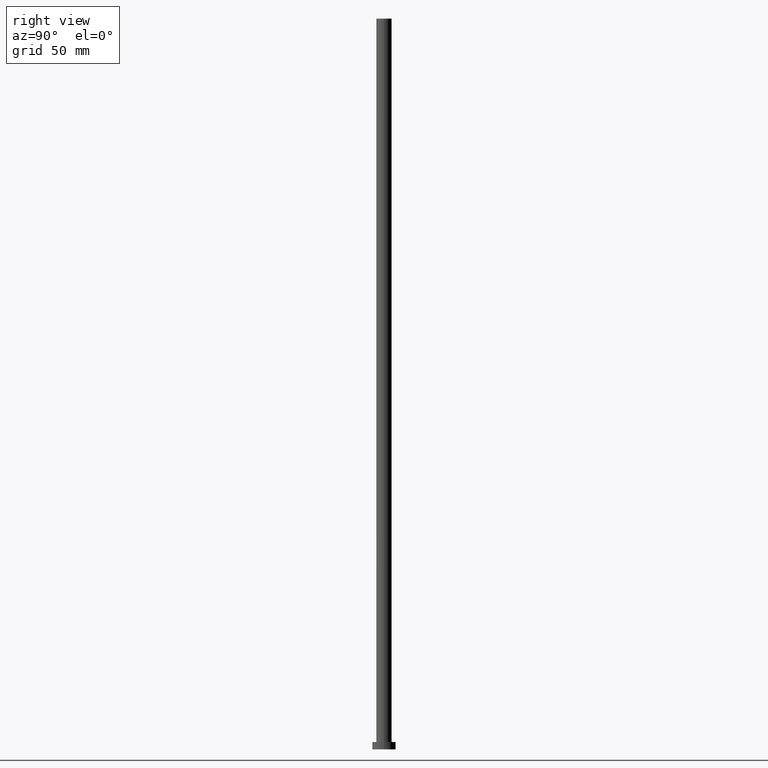
[diagram: clean part render]
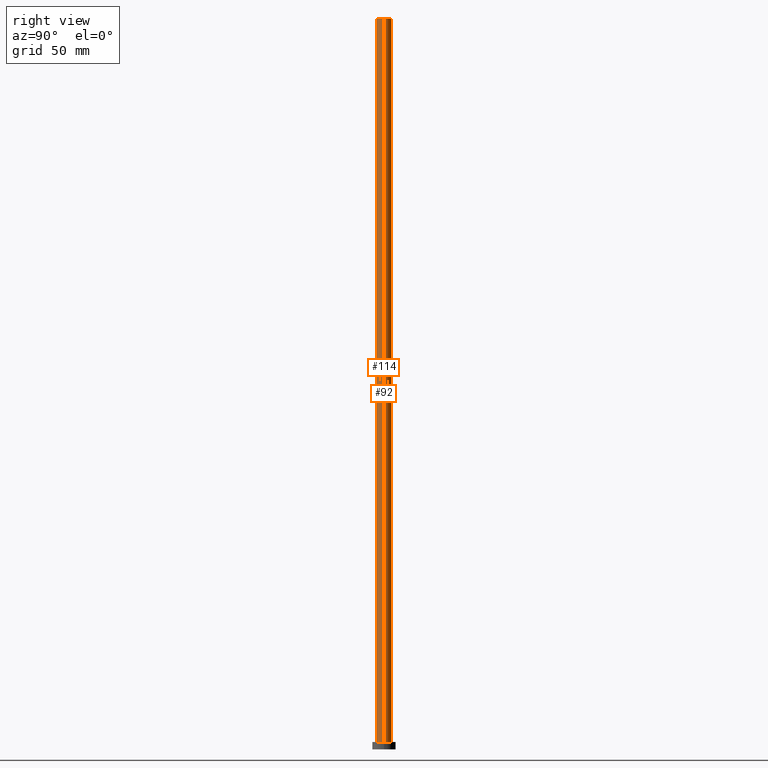
[diagram: same view with one multi-face feature highlighted, each face labeled with its STEP entity id]
A machine part, right view. The highlighted faces form ONE feature: a constant-radius fillet chain: 2 tangent blend faces with common blend radius 5.25 mm. The faces share edges in the B-rep.
Their STEP definitions:
[1] entity #92 (Cylinder):
#1 = ORIENTED_EDGE ( 'NONE', *, *, #166, .T. ) ;
#3 = VERTEX_POINT ( 'NONE', #38 ) ;
#12 = CARTESIAN_POINT ( 'NONE',  ( -5.250000000000000000, 0.000000000000000000, 500.0000000000000000 ) ) ;
#18 = EDGE_LOOP ( 'NONE', ( #95, #1, #43, #97 ) ) ;
#24 = DIRECTION ( 'NONE',  ( 0.000000000000000000, 0.000000000000000000, 1.000000000000000000 ) ) ;
#29 = CIRCLE ( 'NONE', #169, 5.250000000000000000 ) ;
#31 = CARTESIAN_POINT ( 'NONE',  ( -5.250000000000000000, 0.000000000000000000, 5.000000000000000000 ) ) ;
#38 = CARTESIAN_POINT ( 'NONE',  ( 5.250000000000000000, 6.429395695523604153E-16, 500.0000000000000000 ) ) ;
#40 = VERTEX_POINT ( 'NONE', #240 ) ;
#43 = ORIENTED_EDGE ( 'NONE', *, *, #110, .T. ) ;
#47 = AXIS2_PLACEMENT_3D ( 'NONE', #159, #141, #179 ) ;
#66 = LINE ( 'NONE', #68, #180 ) ;
#68 = CARTESIAN_POINT ( 'NONE',  ( 5.250000000000000000, 6.429395695523604153E-16, 500.0000000000000000 ) ) ;
#75 = EDGE_CURVE ( 'NONE', #3, #171, #150, .T. ) ;
#78 = FACE_OUTER_BOUND ( 'NONE', #18, .T. ) ;
#82 = DIRECTION ( 'NONE',  ( -0.000000000000000000, -0.000000000000000000, -1.000000000000000000 ) ) ;
#92 = ADVANCED_FACE ( 'NONE', ( #78 ), #199, .T. ) ;
#95 = ORIENTED_EDGE ( 'NONE', *, *, #75, .F. ) ;
#97 = ORIENTED_EDGE ( 'NONE', *, *, #161, .F. ) ;
#102 = LINE ( 'NONE', #209, #178 ) ;
#110 = EDGE_CURVE ( 'NONE', #40, #238, #29, .T. ) ;
#111 = CARTESIAN_POINT ( 'NONE',  ( 0.000000000000000000, 0.000000000000000000, 5.000000000000000000 ) ) ;
#141 = DIRECTION ( 'NONE',  ( -0.000000000000000000, -0.000000000000000000, -1.000000000000000000 ) ) ;
#150 = CIRCLE ( 'NONE', #252, 5.250000000000000000 ) ;
#156 = DIRECTION ( 'NONE',  ( 0.000000000000000000, 0.000000000000000000, 1.000000000000000000 ) ) ;
#159 = CARTESIAN_POINT ( 'NONE',  ( 0.000000000000000000, 0.000000000000000000, 500.0000000000000000 ) ) ;
#161 = EDGE_CURVE ( 'NONE', #171, #238, #102, .T. ) ;
#166 = EDGE_CURVE ( 'NONE', #3, #40, #66, .T. ) ;
#169 = AXIS2_PLACEMENT_3D ( 'NONE', #111, #156, #236 ) ;
#171 = VERTEX_POINT ( 'NONE', #12 ) ;
#172 = CARTESIAN_POINT ( 'NONE',  ( 0.000000000000000000, 0.000000000000000000, 500.0000000000000000 ) ) ;
#178 = VECTOR ( 'NONE', #188, 1000.000000000000000 ) ;
#179 = DIRECTION ( 'NONE',  ( -1.000000000000000000, 0.000000000000000000, 0.000000000000000000 ) ) ;
#180 = VECTOR ( 'NONE', #82, 1000.000000000000000 ) ;
#188 = DIRECTION ( 'NONE',  ( -0.000000000000000000, -0.000000000000000000, -1.000000000000000000 ) ) ;
#199 = CYLINDRICAL_SURFACE ( 'NONE', #47, 5.250000000000000000 ) ;
#209 = CARTESIAN_POINT ( 'NONE',  ( -5.250000000000000000, 0.000000000000000000, 500.0000000000000000 ) ) ;
#220 = DIRECTION ( 'NONE',  ( 1.000000000000000000, 0.000000000000000000, 0.000000000000000000 ) ) ;
#236 = DIRECTION ( 'NONE',  ( 1.000000000000000000, 0.000000000000000000, 0.000000000000000000 ) ) ;
#238 = VERTEX_POINT ( 'NONE', #31 ) ;
#240 = CARTESIAN_POINT ( 'NONE',  ( 5.250000000000000000, 6.429395695523604153E-16, 5.000000000000000000 ) ) ;
#252 = AXIS2_PLACEMENT_3D ( 'NONE', #172, #24, #220 ) ;
[2] entity #114 (Cylinder):
#3 = VERTEX_POINT ( 'NONE', #38 ) ;
#12 = CARTESIAN_POINT ( 'NONE',  ( -5.250000000000000000, 0.000000000000000000, 500.0000000000000000 ) ) ;
#15 = DIRECTION ( 'NONE',  ( 0.000000000000000000, 0.000000000000000000, 1.000000000000000000 ) ) ;
#31 = CARTESIAN_POINT ( 'NONE',  ( -5.250000000000000000, 0.000000000000000000, 5.000000000000000000 ) ) ;
#36 = DIRECTION ( 'NONE',  ( 1.000000000000000000, 0.000000000000000000, 0.000000000000000000 ) ) ;
#37 = ORIENTED_EDGE ( 'NONE', *, *, #251, .F. ) ;
#38 = CARTESIAN_POINT ( 'NONE',  ( 5.250000000000000000, 6.429395695523604153E-16, 500.0000000000000000 ) ) ;
#40 = VERTEX_POINT ( 'NONE', #240 ) ;
#46 = CARTESIAN_POINT ( 'NONE',  ( 0.000000000000000000, 0.000000000000000000, 5.000000000000000000 ) ) ;
#61 = FACE_OUTER_BOUND ( 'NONE', #214, .T. ) ;
#64 = ORIENTED_EDGE ( 'NONE', *, *, #166, .F. ) ;
#66 = LINE ( 'NONE', #68, #180 ) ;
#68 = CARTESIAN_POINT ( 'NONE',  ( 5.250000000000000000, 6.429395695523604153E-16, 500.0000000000000000 ) ) ;
#82 = DIRECTION ( 'NONE',  ( -0.000000000000000000, -0.000000000000000000, -1.000000000000000000 ) ) ;
#102 = LINE ( 'NONE', #209, #178 ) ;
#112 = CYLINDRICAL_SURFACE ( 'NONE', #210, 5.250000000000000000 ) ;
#114 = ADVANCED_FACE ( 'NONE', ( #61 ), #112, .T. ) ;
#121 = DIRECTION ( 'NONE',  ( 1.000000000000000000, 0.000000000000000000, 0.000000000000000000 ) ) ;
#133 = AXIS2_PLACEMENT_3D ( 'NONE', #192, #15, #36 ) ;
#136 = EDGE_CURVE ( 'NONE', #238, #40, #146, .T. ) ;
#143 = DIRECTION ( 'NONE',  ( -1.000000000000000000, 0.000000000000000000, 0.000000000000000000 ) ) ;
#146 = CIRCLE ( 'NONE', #195, 5.250000000000000000 ) ;
#157 = CARTESIAN_POINT ( 'NONE',  ( 0.000000000000000000, 0.000000000000000000, 500.0000000000000000 ) ) ;
#161 = EDGE_CURVE ( 'NONE', #171, #238, #102, .T. ) ;
#166 = EDGE_CURVE ( 'NONE', #3, #40, #66, .T. ) ;
#171 = VERTEX_POINT ( 'NONE', #12 ) ;
#178 = VECTOR ( 'NONE', #188, 1000.000000000000000 ) ;
#180 = VECTOR ( 'NONE', #82, 1000.000000000000000 ) ;
#188 = DIRECTION ( 'NONE',  ( -0.000000000000000000, -0.000000000000000000, -1.000000000000000000 ) ) ;
#192 = CARTESIAN_POINT ( 'NONE',  ( 0.000000000000000000, 0.000000000000000000, 500.0000000000000000 ) ) ;
#195 = AXIS2_PLACEMENT_3D ( 'NONE', #46, #205, #121 ) ;
#198 = ORIENTED_EDGE ( 'NONE', *, *, #161, .T. ) ;
#205 = DIRECTION ( 'NONE',  ( 0.000000000000000000, 0.000000000000000000, 1.000000000000000000 ) ) ;
#209 = CARTESIAN_POINT ( 'NONE',  ( -5.250000000000000000, 0.000000000000000000, 500.0000000000000000 ) ) ;
#210 = AXIS2_PLACEMENT_3D ( 'NONE', #157, #237, #143 ) ;
#214 = EDGE_LOOP ( 'NONE', ( #64, #37, #198, #221 ) ) ;
#221 = ORIENTED_EDGE ( 'NONE', *, *, #136, .T. ) ;
#237 = DIRECTION ( 'NONE',  ( -0.000000000000000000, -0.000000000000000000, -1.000000000000000000 ) ) ;
#238 = VERTEX_POINT ( 'NONE', #31 ) ;
#240 = CARTESIAN_POINT ( 'NONE',  ( 5.250000000000000000, 6.429395695523604153E-16, 5.000000000000000000 ) ) ;
#241 = CIRCLE ( 'NONE', #133, 5.250000000000000000 ) ;
#251 = EDGE_CURVE ( 'NONE', #171, #3, #241, .T. ) ;